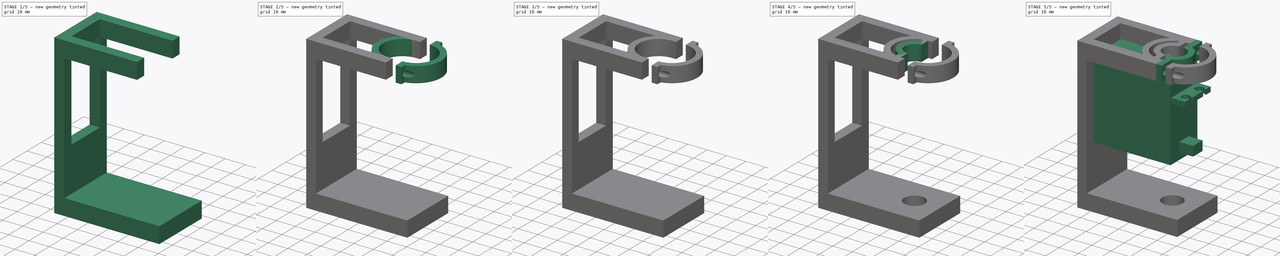
[diagram: build sequence overview — one tinted view per stage of 5, left to right]
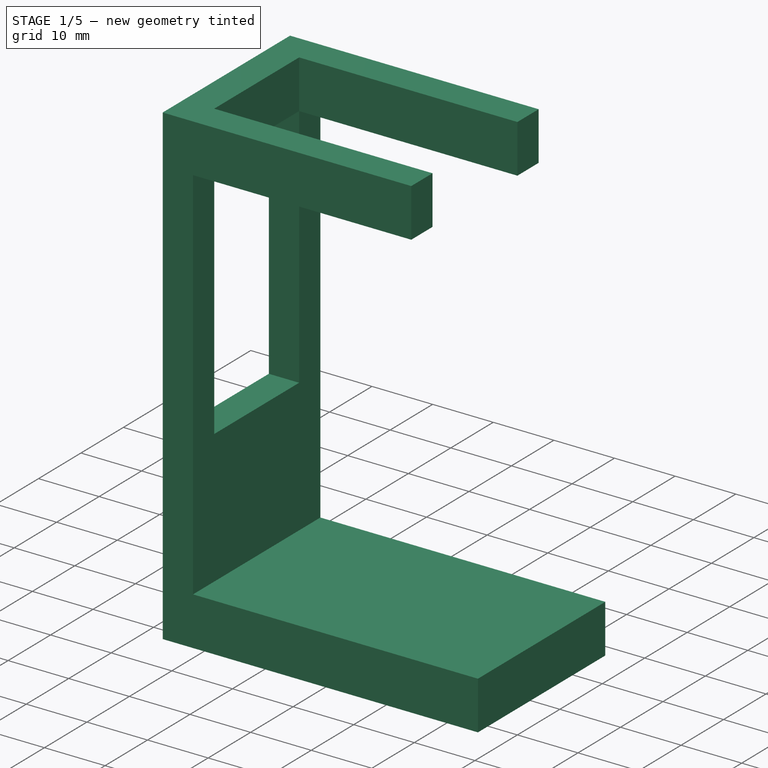
[diagram: stage 1 of 5 — iso view after this stage's code; geometry added in this stage tinted green]
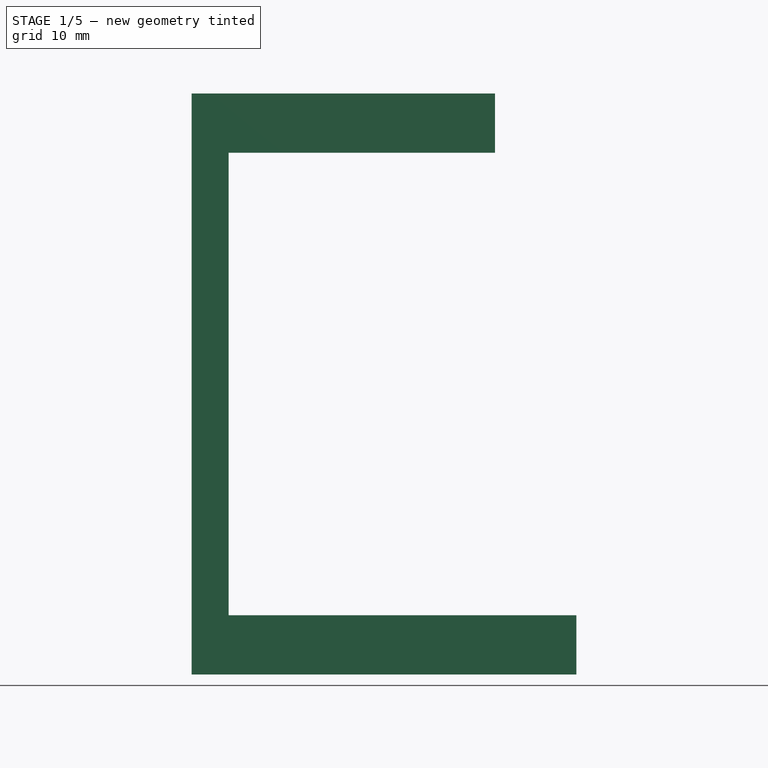
[diagram: stage 1 of 5 — front view after this stage's code; geometry added in this stage tinted green]
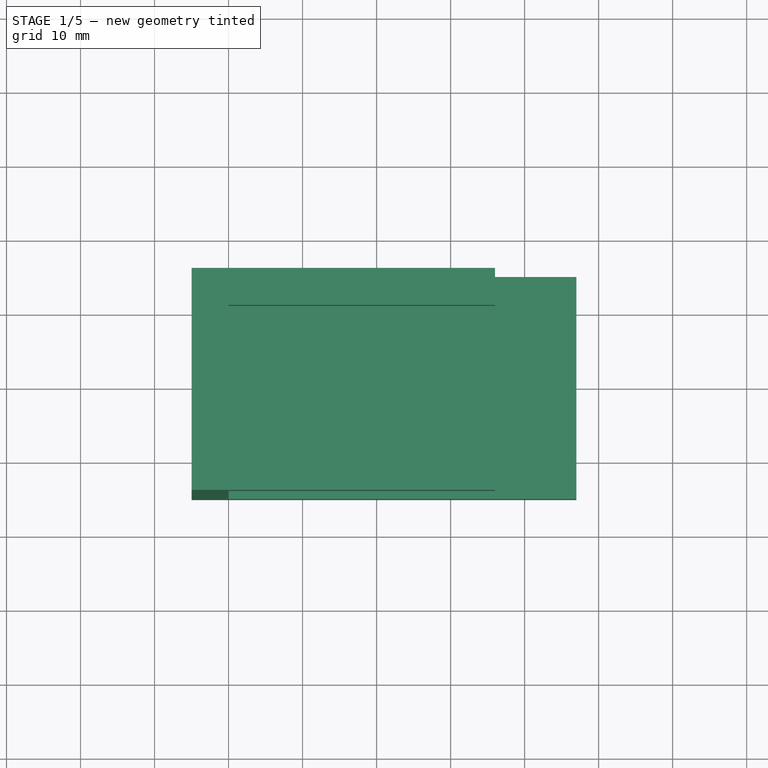
[diagram: stage 1 of 5 — top view after this stage's code; geometry added in this stage tinted green]
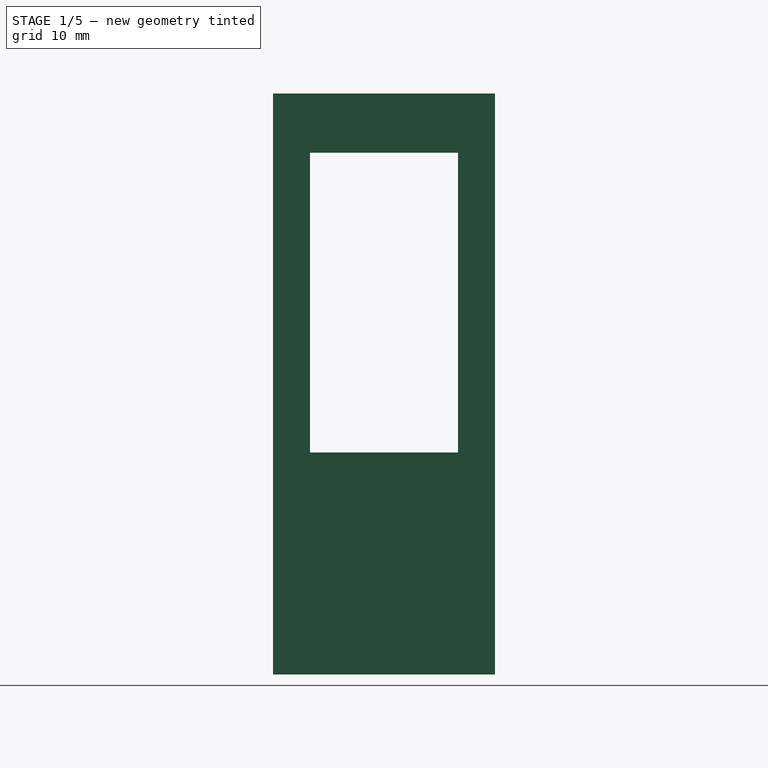
[diagram: stage 1 of 5 — right view after this stage's code; geometry added in this stage tinted green]
FCSTD DOCUMENT  (FreeCAD 0.19R24291 (Git))
Label: MG996R-mounts
License: All rights reserved
LicenseURL: http://en.wikipedia.org/wiki/All_rights_reserved
objects: Sketcher::SketchObject×16, PartDesign::Pad×11, PartDesign::Pocket×6, PartDesign::Body×4, App::Part×3, Spreadsheet::Sheet×2
note: 54 computed .brp shape members not serialized (recipe doc carries the construction recipe); baked Part::Feature solids carry a one-line shape summary decoded from their .brp

FEATURE [PartDesign::Body] Body  label="MG996R-mount-tap"
  Group = -> [Sketch,Pad,Sketch001,Pad004,Sketch002,Pad005,Sketch003,Pad006,Sketch006,Pocket001,Sketch007,Pocket002]
  Origin = -> Origin001
  Tip = -> Pocket002
FEATURE [App::Part] Part  label="3-way-tap"
  Group = -> [Body,Body001,Spreadsheet]
  Origin = -> Origin
FEATURE [Sketcher::SketchObject] Sketch008
  FullyConstrained = true
  MapMode = 5
  Placement = pos=(0,0,0) rot=(0.57735,0.57735,0.57735;2.0944rad)
  Support = -> [YZ_Plane005]
  expr: Constraints[11] = Spreadsheet.lower_bar_width
  expr: Constraints[10] = Spreadsheet001.brace_thickness_y
  expr: Constraints[9] = Spreadsheet001.MG996R_width + 2 * Spreadsheet001.brace_thickness_y
  expr: Constraints[8] = Spreadsheet001.brace_long_side_offset
  sketch-geometry (4):
    g0: LineSegment StartX=25 StartY=-30 StartZ=0 EndX=-5 EndY=-30 EndZ=0
    g1: LineSegment StartX=-5 StartY=-30 StartZ=0 EndX=-5 EndY=-22 EndZ=0
    g2: LineSegment StartX=-5 StartY=-22 StartZ=0 EndX=25 EndY=-22 EndZ=0
    g3: LineSegment StartX=25 StartY=-22 StartZ=0 EndX=25 EndY=-30 EndZ=0
  constraints (12):
    c: Coincident(g0,g1)
    c: Coincident(g1,g2)
    c: Coincident(g2,g3)
    c: Coincident(g3,g0)
    c: Horizontal(g0)
    c: Horizontal(g2)
    c: Vertical(g1)
    c: Vertical(g3)
    c: DistanceY(g0,g-1) = 30
    c: DistanceX(g0,g0) = 30
    c: DistanceX(g1,g-1) = 5
    c: DistanceY(g3,g3) = 8
FEATURE [Spreadsheet::Sheet] Spreadsheet001
  cells = A1=variable; B1=values; A2=brace_thickness_x; B2(brace_thickness_x)=8; A3=brace_thickness_y; B3(brace_thickness_y)=5; A4=brace_depth; B4(brace_depth)=5; A5=MG996R_width; B5(MG996R_width)=20; A6=MG996R_length; B6(MG996R_length)=40.5; A7=brace_long_side_offset; B7(brace_long_side_offset)=30; A8=dist_to_spindle; B8(dist_to_spindle)==38 - brace_depth - MG996R_bracket_depth; A9=spindle_dia; B9(spindle_dia)=20; A10=holding_band_thicc; B10(holding_band_thicc)=3; A11=bottom_spindle_dia; B11(bottom_spindle_dia)=10; A12=lower_bar_width; B12(lower_bar_width)=8; A13=MG996R_bracket_depth; B13(MG996R_bracket_depth)=4
FEATURE [Sketcher::SketchObject] Sketch009
  FullyConstrained = true
  MapMode = 5
  Placement = pos=(0,0,0) rot=(0.57735,0.57735,0.57735;2.0944rad)
  Support = -> [YZ_Plane005]
  expr: Constraints[23] = Spreadsheet001.MG996R_length
  expr: Constraints[22] = Spreadsheet001.MG996R_width
  expr: Constraints[21] = Spreadsheet001.brace_thickness_y
  expr: Constraints[18] = Spreadsheet001.brace_thickness_x
  sketch-geometry (8):
    g0: LineSegment StartX=-5 StartY=48.5 StartZ=0 EndX=0 EndY=48.5 EndZ=0
    g1: LineSegment StartX=0 StartY=48.5 StartZ=0 EndX=0 EndY=40.5 EndZ=0
    g2: LineSegment StartX=0 StartY=40.5 StartZ=0 EndX=-5 EndY=40.5 EndZ=0
    g3: LineSegment StartX=-5 StartY=40.5 StartZ=0 EndX=-5 EndY=48.5 EndZ=0
    g4: LineSegment StartX=20 StartY=48.5 StartZ=0 EndX=25 EndY=48.5 EndZ=0
    g5: LineSegment StartX=25 StartY=48.5 StartZ=0 EndX=25 EndY=40.5 EndZ=0
    g6: LineSegment StartX=25 StartY=40.5 StartZ=0 EndX=20 EndY=40.5 EndZ=0
    g7: LineSegment StartX=20 StartY=40.5 StartZ=0 EndX=20 EndY=48.5 EndZ=0
  constraints (24):
    c: Coincident(g0,g1)
    c: Coincident(g1,g2)
    c: Coincident(g2,g3)
    c: Coincident(g3,g0)
    c: Horizontal(g0)
    c: Horizontal(g2)
    c: Vertical(g1)
    c: Vertical(g3)
    c: Coincident(g4,g5)
    c: Coincident(g5,g6)
    c: Coincident(g6,g7)
    c: Coincident(g7,g4)
    c: Horizontal(g4)
    c: Horizontal(g6)
    c: Vertical(g5)
    c: Vertical(g7)
    c: Horizontal(g4,g0)
    c: Horizontal(g1,g6)
    c: DistanceY(g3,g3) = 8
    c: PointOnObject(g1,g-2)
    c: Equal(g6,g2)
    c: DistanceX(g2,g2) = 5
    c: DistanceX(g1,g6) = 20
    c: DistanceY(g-1,g1) = 40.5
FEATURE [Sketcher::SketchObject] Sketch010
  AttachmentOffset = pos=(0,0,40.5) rot=(0,0,1;0rad)
  FullyConstrained = true
  MapMode = 5
  Placement = pos=(0,0,40.5) rot=(0,0,1;0rad)
  Support = -> [XY_Plane005]
  expr: Constraints[29] = Spreadsheet001.MG996R_width / 2 - Spreadsheet001.spindle_dia / 2 + Spreadsheet001.brace_thickness_y
  expr: Constraints[27] = Spreadsheet001.spindle_dia + 6
  expr: .AttachmentOffset.Base.z = Spreadsheet001.MG996R_length
  expr: Constraints[7] = Spreadsheet001.spindle_dia
  expr: Constraints[5] = Spreadsheet001.dist_to_spindle + Spreadsheet001.bottom_spindle_dia / 2
  expr: Constraints[2] = Spreadsheet001.MG996R_width / 2
  sketch-geometry (10):
    g0: LineSegment StartX=0 StartY=0 StartZ=0 EndX=0 EndY=10 EndZ=0
    g1: LineSegment StartX=0 StartY=10 StartZ=0 EndX=34 EndY=10 EndZ=0
    g2: ArcOfCircle CenterX=34 CenterY=10 CenterZ=0 NormalX=0 NormalY=0 NormalZ=1 AngleXU=0 Radius=10 StartAngle=1.5708 EndAngle=4.71239
    g3: LineSegment StartX=34 StartY=20 StartZ=0 EndX=34 EndY=25 EndZ=0
    g4: LineSegment StartX=34 StartY=0 StartZ=0 EndX=34 EndY=-5 EndZ=0
    g5: LineSegment StartX=34 StartY=-5 StartZ=0 EndX=31 EndY=-5 EndZ=0
    g6: LineSegment StartX=31 StartY=-5 StartZ=0 EndX=31 EndY=-2.64911 EndZ=0
    g7: LineSegment StartX=34 StartY=25 StartZ=0 EndX=31 EndY=25 EndZ=0
    g8: LineSegment StartX=31 StartY=25 StartZ=0 EndX=31 EndY=22.6491 EndZ=0
    g9: ArcOfCircle CenterX=34 CenterY=10 CenterZ=0 NormalX=0 NormalY=0 NormalZ=1 AngleXU=0 Radius=13 StartAngle=1.80366 EndAngle=4.47952
  constraints (30):
    c: Coincident(g0,g-1)
    c: PointOnObject(g0,g-2)
    c: DistanceY(g0,g0) = 10
    c: Coincident(g1,g0)
    c: Horizontal(g1)
    c: DistanceX(g1,g1) = 34
    c: Coincident(g2,g1)
    c: Diameter(g2) = 20
    c: Vertical(g2,g2)
    c: Vertical(g2,g2)
    c: Coincident(g3,g2)
    c: Vertical(g3)
    c: Coincident(g4,g2)
    c: Vertical(g4)
    c: Coincident(g5,g4)
    c: Coincident(g6,g5)
    c: Vertical(g6)
    c: Coincident(g7,g3)
    c: Coincident(g8,g7)
    c: Vertical(g8)
    c: Coincident(g9,g2)
    c: Coincident(g9,g8)
    c: Coincident(g9,g6)
    c: Equal(g5,g7)
    c: Equal(g4,g3)
    c: Horizontal(g7)
    c: Horizontal(g5)
    c: Diameter(g9) = 26
    c: DistanceX(g7,g7) = 3
    c: DistanceY(g3,g3) = 5
FEATURE [Sketcher::SketchObject] Sketch011
  FullyConstrained = true
  MapMode = 5
  Placement = pos=(0,0,0) rot=(0.57735,0.57735,0.57735;2.0944rad)
  Support = -> [YZ_Plane005]
  expr: Constraints[21] = Spreadsheet001.brace_thickness_y
  expr: Constraints[20] = Spreadsheet001.brace_thickness_x
  expr: Constraints[19] = Spreadsheet001.brace_long_side_offset
  expr: Constraints[18] = Spreadsheet001.MG996R_width
  expr: Constraints[22] = Spreadsheet001.brace_thickness_y
  expr: Constraints[17] = Spreadsheet001.MG996R_length
  sketch-geometry (8):
    g0: LineSegment StartX=0 StartY=0 StartZ=0 EndX=20 EndY=0 EndZ=0
    g1: LineSegment StartX=20 StartY=0 StartZ=0 EndX=20 EndY=40.5 EndZ=0
    g2: LineSegment StartX=20 StartY=40.5 StartZ=0 EndX=0 EndY=40.5 EndZ=0
    g3: LineSegment StartX=0 StartY=40.5 StartZ=0 EndX=0 EndY=0 EndZ=0
    g4: LineSegment StartX=-5 StartY=-30 StartZ=0 EndX=25 EndY=-30 EndZ=0
    g5: LineSegment StartX=25 StartY=-30 StartZ=0 EndX=25 EndY=48.5 EndZ=0
    g6: LineSegment StartX=25 StartY=48.5 StartZ=0 EndX=-5 EndY=48.5 EndZ=0
    g7: LineSegment StartX=-5 StartY=48.5 StartZ=0 EndX=-5 EndY=-30 EndZ=0
  constraints (23):
    c: Coincident(g0,g1)
    c: Coincident(g1,g2)
    c: Coincident(g2,g3)
    c: Coincident(g3,g0)
    c: Horizontal(g0)
    c: Horizontal(g2)
    c: Vertical(g1)
    c: Vertical(g3)
    c: Coincident(g0,g-1)
    c: Coincident(g4,g5)
    c: Coincident(g5,g6)
    c: Coincident(g6,g7)
    c: Coincident(g7,g4)
    c: Horizontal(g4)
    c: Horizontal(g6)
    c: Vertical(g5)
    c: Vertical(g7)
    c: DistanceY(g1,g1) = 40.5
    c: DistanceX(g2,g2) = 20
    c: DistanceY(g4,g0) = 30
    c: DistanceY(g1,g5) = 8
    c: DistanceX(g1,g5) = 5
    c: DistanceX(g6,g2) = 5
FEATURE [PartDesign::Pad] Pad009
  Direction = (1,1,1)
  Length = 5
  Length2 = 100
  Placement = pos=(0,0,0) rot=(0.57735,0.57735,0.57735;2.0944rad)
  Profile = -> Sketch011
  Reversed = true
  Type = 0
  expr: Length = Spreadsheet001.brace_depth
FEATURE [PartDesign::Pad] Pad008
  BaseFeature = -> Pad009
  Direction = (1,1,1)
  Length = 47
  Length2 = 100
  Placement = pos=(0,0,0) rot=(0.57735,0.57735,0.57735;2.0944rad)
  Profile = -> Sketch008
  Type = 0
  expr: Length = Spreadsheet001.dist_to_spindle + Spreadsheet001.bottom_spindle_dia + Spreadsheet001.brace_thickness_x
FEATURE [PartDesign::Body] Body003  label="MG996R-band-sep"
  Group = -> [Sketch014,Pad011,Sketch013,Pocket005]
  Origin = -> Origin005
  Tip = -> Pocket005
FEATURE [Sketcher::SketchObject] Sketch015
  FullyConstrained = true
  MapMode = 5
  Support = -> [XY_Plane005]
  expr: Constraints[2] = Spreadsheet001.MG996R_width / 2
  expr: Constraints[1] = Spreadsheet001.bottom_spindle_dia + 0.5
  expr: Constraints[0] = Spreadsheet001.dist_to_spindle + Spreadsheet001.bottom_spindle_dia / 2
  sketch-geometry (1):
    g0: Circle CenterX=34 CenterY=10 CenterZ=0 NormalX=0 NormalY=0 NormalZ=1 AngleXU=0 Radius=5.25
  constraints (3):
    c: DistanceX(g-1,g0) = 34
    c: Diameter(g0) = 10.5
    c: DistanceY(g-1,g0) = 10
FEATURE [PartDesign::Pad] Pad012
  BaseFeature = -> Pad008
  Direction = (1,1,1)
  Length = 36
  Length2 = 100
  Placement = pos=(0,0,0) rot=(0.57735,0.57735,0.57735;2.0944rad)
  Profile = -> Sketch009
  Type = 0
  expr: Length = Spreadsheet001.dist_to_spindle + Spreadsheet001.spindle_dia / 2 - Spreadsheet001.holding_band_thicc
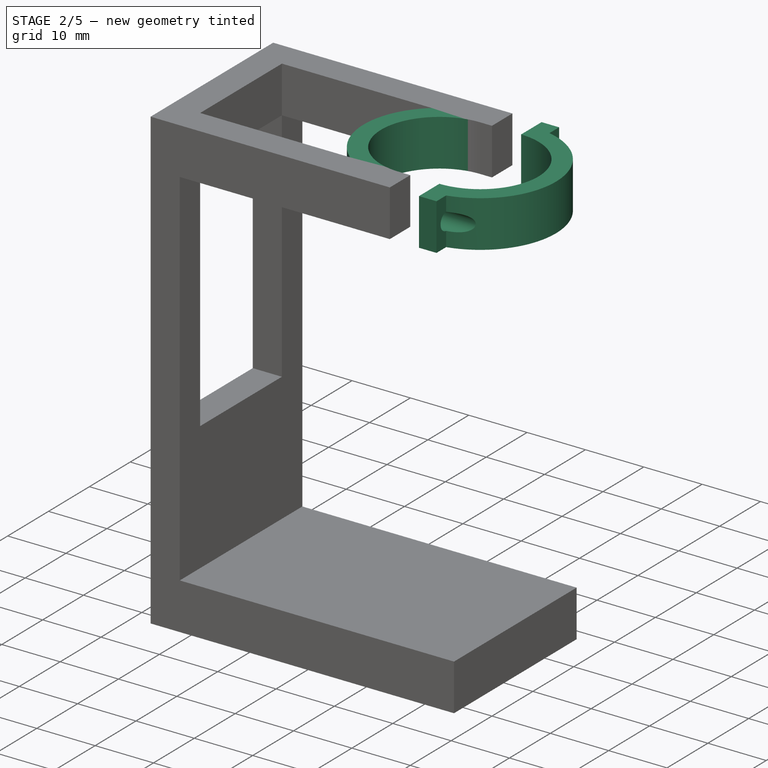
[diagram: stage 2 of 5 — iso view after this stage's code; geometry added in this stage tinted green]
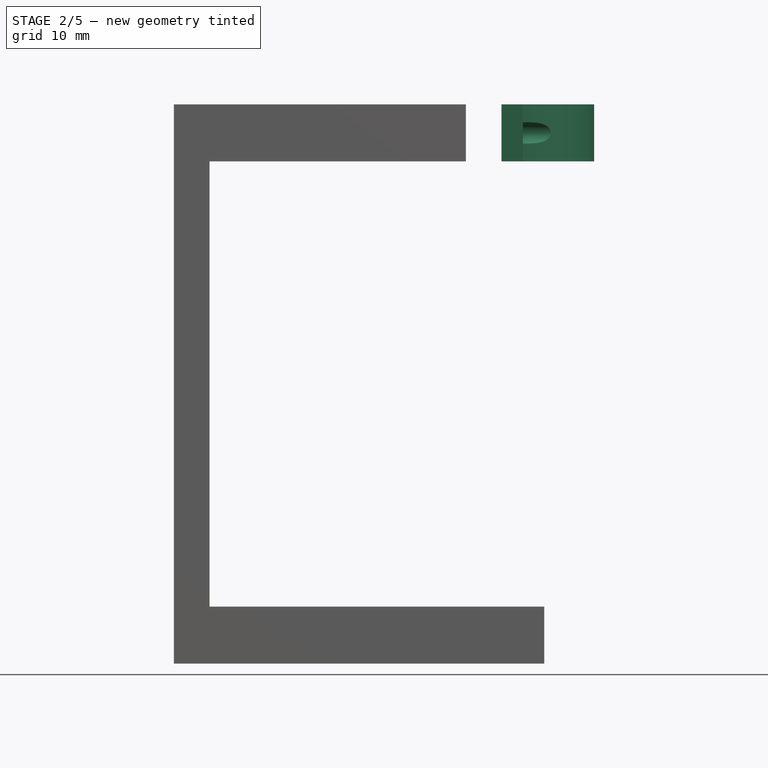
[diagram: stage 2 of 5 — front view after this stage's code; geometry added in this stage tinted green]
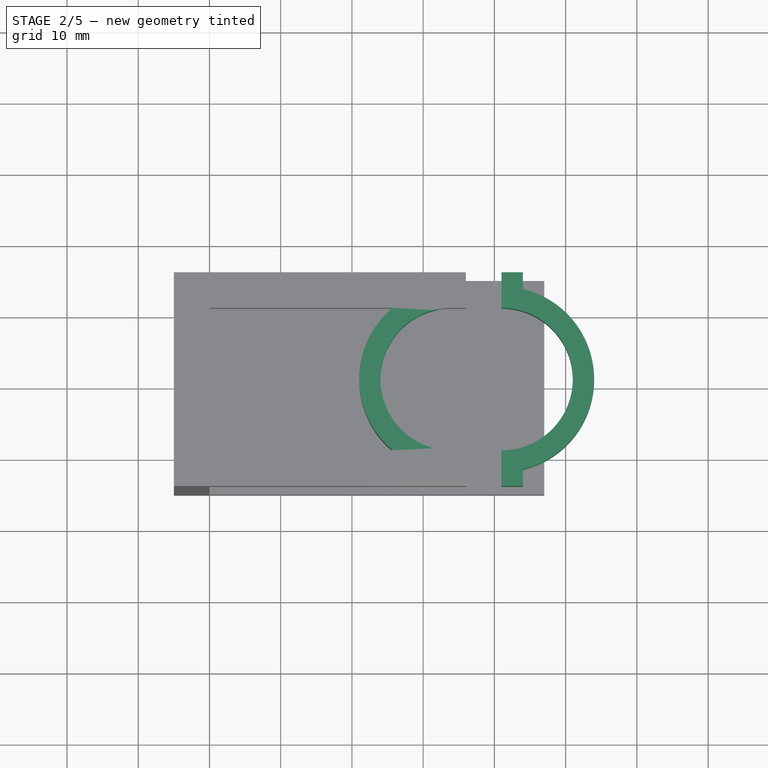
[diagram: stage 2 of 5 — top view after this stage's code; geometry added in this stage tinted green]
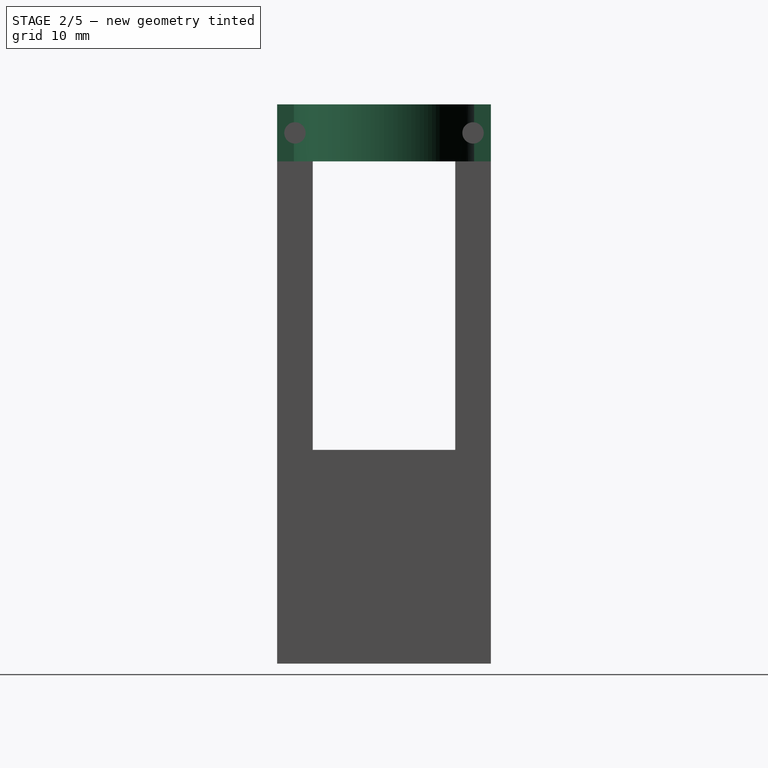
[diagram: stage 2 of 5 — right view after this stage's code; geometry added in this stage tinted green]
FEATURE [Sketcher::SketchObject] Sketch012
  AttachmentOffset = pos=(0,0,40.5) rot=(0,0,1;0rad)
  FullyConstrained = true
  MapMode = 5
  Placement = pos=(40.5,-9e-15,9e-15) rot=(0.57735,0.57735,0.57735;2.0944rad)
  Support = -> [YZ_Plane005]
  expr: .AttachmentOffset.Base.z = Spreadsheet001.MG996R_length
  expr: Constraints[4] = Spreadsheet001.MG996R_length + Spreadsheet001.brace_thickness_x / 2
  expr: Constraints[3] = Spreadsheet001.brace_thickness_y / 2
  expr: Constraints[2] = Spreadsheet001.MG996R_width + Spreadsheet001.brace_thickness_y
  sketch-geometry (2):
    g0: Circle CenterX=-2.5 CenterY=44.5 CenterZ=0 NormalX=0 NormalY=0 NormalZ=1 AngleXU=0 Radius=1.5
    g1: Circle CenterX=22.5 CenterY=44.5 CenterZ=0 NormalX=0 NormalY=0 NormalZ=1 AngleXU=0 Radius=1.5
  constraints (6):
    c: Equal(g1,g0)
    c: Horizontal(g1,g0)
    c: DistanceX(g0,g1) = 25
    c: DistanceX(g0,g-1) = 2.5
    c: DistanceY(g-1,g0) = 44.5
    c: Diameter(g1) = 3
FEATURE [Sketcher::SketchObject] Sketch013
  AttachmentOffset = pos=(0,0,26) rot=(0,0,1;0rad)
  FullyConstrained = true
  MapMode = 5
  Placement = pos=(26,-5.8e-15,5.8e-15) rot=(0.57735,0.57735,0.57735;2.0944rad)
  Support = -> [YZ_Plane006]
  expr: .AttachmentOffset.Base.z = Spreadsheet001.dist_to_spindle - Spreadsheet001.holding_band_thicc
  expr: Constraints[5] = Spreadsheet001.brace_thickness_y / 2
  expr: Constraints[2] = Spreadsheet001.MG996R_width + Spreadsheet001.brace_thickness_y
  expr: Constraints[1] = Spreadsheet001.MG996R_length + Spreadsheet001.brace_thickness_x / 2
  sketch-geometry (2):
    g0: Circle CenterX=22.5 CenterY=44.5 CenterZ=0 NormalX=0 NormalY=0 NormalZ=1 AngleXU=0 Radius=1.5
    g1: Circle CenterX=-2.5 CenterY=44.5 CenterZ=0 NormalX=0 NormalY=0 NormalZ=1 AngleXU=0 Radius=1.5
  constraints (6):
    c: Horizontal(g1,g0)
    c: DistanceY(g-1,g1) = 44.5
    c: DistanceX(g1,g0) = 25
    c: Diameter(g0) = 3
    c: Equal(g1,g0)
    c: DistanceX(g1,g-1) = 2.5
FEATURE [Sketcher::SketchObject] Sketch014
  AttachmentOffset = pos=(0,0,40.5) rot=(0,0,1;0rad)
  FullyConstrained = true
  MapMode = 5
  Placement = pos=(0,0,40.5) rot=(0,0,1;0rad)
  Support = -> [XY_Plane006]
  expr: .AttachmentOffset.Base.z = Spreadsheet001.MG996R_length
  expr: Constraints[28] = Spreadsheet001.spindle_dia + 6
  expr: Constraints[5] = Spreadsheet001.dist_to_spindle + Spreadsheet001.spindle_dia / 2 + 2
  expr: Constraints[29] = Spreadsheet001.MG996R_width / 2 + Spreadsheet001.brace_thickness_y - Spreadsheet001.spindle_dia / 2
  expr: Constraints[26] = Spreadsheet001.spindle_dia
  expr: Constraints[4] = Spreadsheet001.MG996R_width / 2
  sketch-geometry (10):
    g0: LineSegment StartX=0 StartY=0 StartZ=0 EndX=0 EndY=10 EndZ=0
    g1: LineSegment StartX=0 StartY=10 StartZ=0 EndX=41 EndY=10 EndZ=0
    g2: ArcOfCircle CenterX=41 CenterY=10 CenterZ=0 NormalX=0 NormalY=0 NormalZ=1 AngleXU=0 Radius=10 StartAngle=4.71239 EndAngle=7.85398
    g3: LineSegment StartX=41 StartY=20 StartZ=0 EndX=41 EndY=25 EndZ=0
    g4: LineSegment StartX=41 StartY=25 StartZ=0 EndX=44 EndY=25 EndZ=0
    g5: LineSegment StartX=44 StartY=25 StartZ=0 EndX=44 EndY=22.6491 EndZ=0
    g6: LineSegment StartX=41 StartY=0 StartZ=0 EndX=41 EndY=-5 EndZ=0
    g7: LineSegment StartX=41 StartY=-5 StartZ=0 EndX=44 EndY=-5 EndZ=0
    g8: LineSegment StartX=44 StartY=-5 StartZ=0 EndX=44 EndY=-2.64911 EndZ=0
    g9: ArcOfCircle CenterX=41 CenterY=10 CenterZ=0 NormalX=0 NormalY=0 NormalZ=1 AngleXU=0 Radius=13 StartAngle=4.94526 EndAngle=7.62111
  constraints (30):
    c: Coincident(g0,g-1)
    c: PointOnObject(g0,g-2)
    c: Coincident(g1,g0)
    c: Horizontal(g1)
    c: DistanceY(g0,g0) = 10
    c: DistanceX(g1,g1) = 41
    c: Coincident(g2,g1)
    c: Coincident(g3,g2)
    c: Vertical(g3)
    c: Coincident(g4,g3)
    c: Horizontal(g4)
    c: Coincident(g5,g4)
    c: Vertical(g5)
    c: Coincident(g6,g2)
    c: Vertical(g6)
    c: Coincident(g7,g6)
    c: Coincident(g8,g7)
    c: Vertical(g8)
    c: Coincident(g9,g2)
    c: Coincident(g9,g5)
    c: Coincident(g9,g8)
    c: Equal(g3,g6)
    c: Equal(g5,g8)
    c: Equal(g7,g4)
    c: Vertical(g2,g2)
    c: Vertical(g2,g2)
    c: Diameter(g2) = 20
    c: DistanceX(g7,g7) = 3
    c: Diameter(g9) = 26
    c: DistanceY(g3,g3) = 5
FEATURE [PartDesign::Pad] Pad011
  Direction = (1,1,1)
  Length = 8
  Length2 = 100
  Profile = -> Sketch014
  Type = 0
  expr: Length = Spreadsheet001.brace_thickness_x
FEATURE [PartDesign::Pocket] Pocket005
  BaseFeature = -> Pad011
  Length = 5
  Length2 = 100
  Profile = -> Sketch013
  Reversed = true
  Type = 1
FEATURE [PartDesign::Pad] Pad010
  BaseFeature = -> Pad012
  Direction = (1,1,1)
  Length = 8
  Length2 = 100
  Placement = pos=(0,0,0) rot=(0.57735,0.57735,0.57735;2.0944rad)
  Profile = -> Sketch010
  Type = 0
  expr: Length = Spreadsheet001.brace_thickness_x
FEATURE [PartDesign::Pocket] Pocket004
  BaseFeature = -> Pad010
  Length = 5
  Length2 = 100
  Placement = pos=(0,0,0) rot=(0.57735,0.57735,0.57735;2.0944rad)
  Profile = -> Sketch012
  Reversed = true
  Type = 1
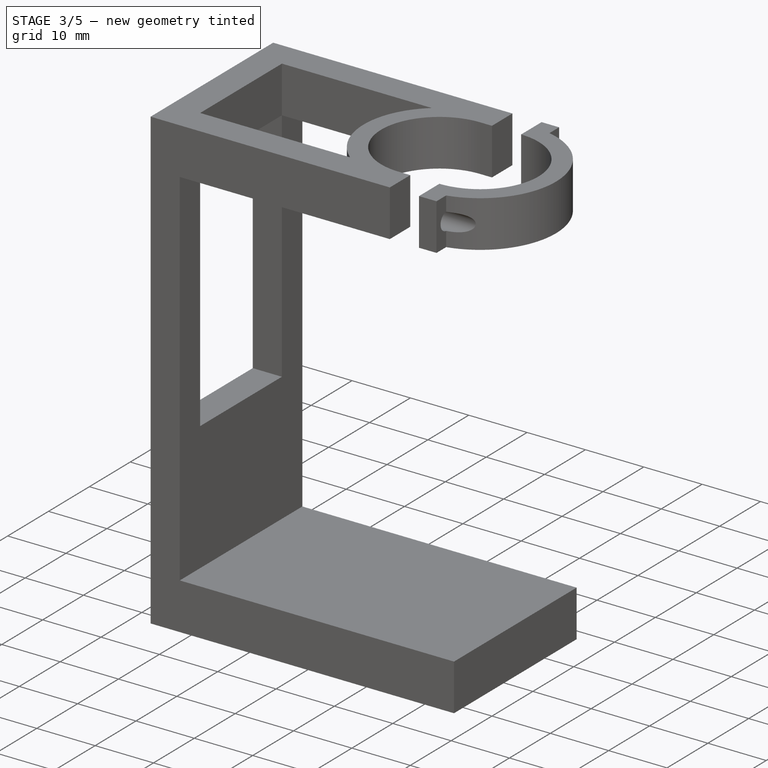
[diagram: stage 3 of 5 — iso view after this stage's code; geometry added in this stage tinted green]
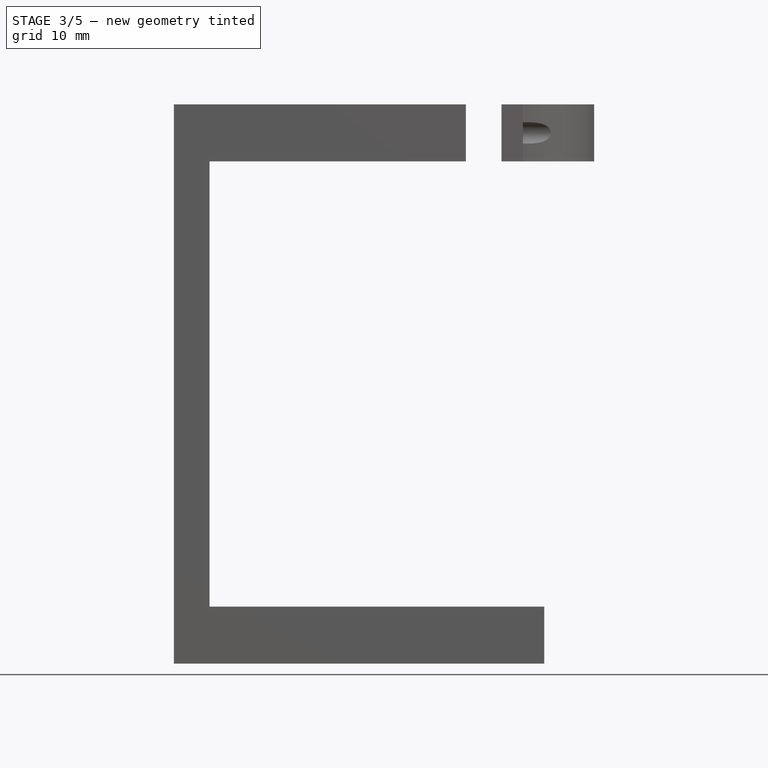
[diagram: stage 3 of 5 — front view after this stage's code; geometry added in this stage tinted green]
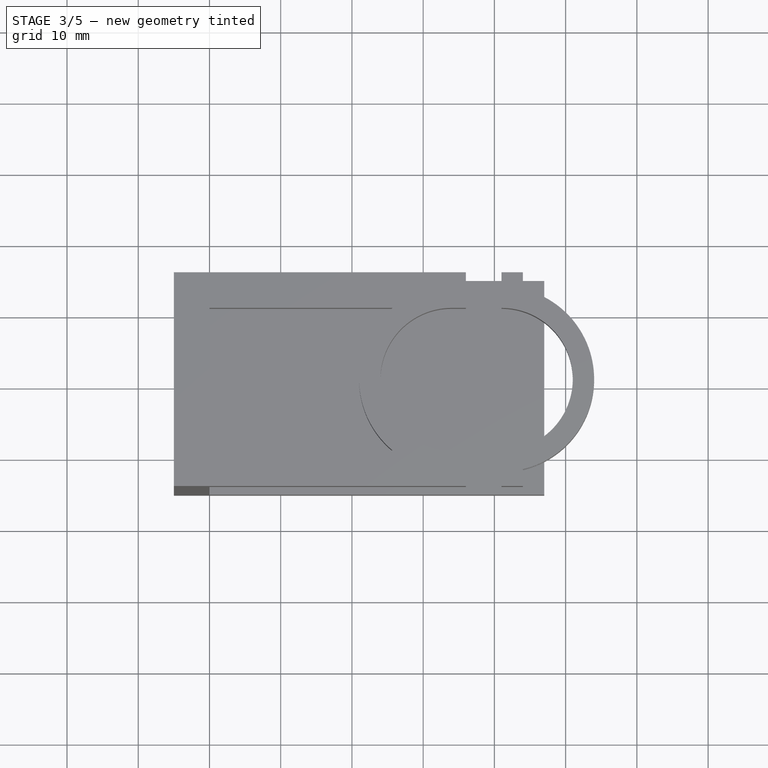
[diagram: stage 3 of 5 — top view after this stage's code; geometry added in this stage tinted green]
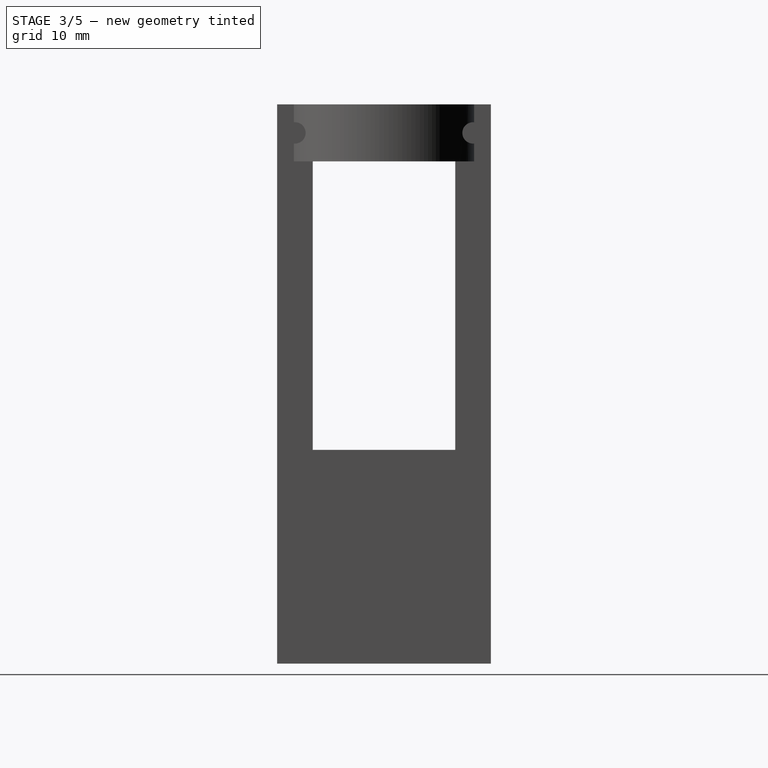
[diagram: stage 3 of 5 — right view after this stage's code; geometry added in this stage tinted green]
FEATURE [App::Part] Part001  label="MG996R"
  Group = -> [Pad003]
  Origin = -> Origin002
  Placement = pos=(-37,0,40) rot=(0,1,0;1.5708rad)
FEATURE [Sketcher::SketchObject] Sketch
  FullyConstrained = true
  MapMode = 5
  Placement = pos=(0,0,0) rot=(0.57735,0.57735,0.57735;2.0944rad)
  Support = -> [YZ_Plane001]
  expr: Constraints[17] = Spreadsheet.MG996R_length
  expr: Constraints[22] = Spreadsheet.brace_thickness_y
  expr: Constraints[18] = Spreadsheet.MG996R_width
  expr: Constraints[19] = Spreadsheet.brace_long_side_offset
  expr: Constraints[20] = Spreadsheet.brace_thickness_x
  expr: Constraints[21] = Spreadsheet.brace_thickness_y
  sketch-geometry (8):
    g0: LineSegment StartX=0 StartY=0 StartZ=0 EndX=20 EndY=0 EndZ=0
    g1: LineSegment StartX=20 StartY=0 StartZ=0 EndX=20 EndY=40.5 EndZ=0
    g2: LineSegment StartX=20 StartY=40.5 StartZ=0 EndX=0 EndY=40.5 EndZ=0
    g3: LineSegment StartX=0 StartY=40.5 StartZ=0 EndX=0 EndY=0 EndZ=0
    g4: LineSegment StartX=-5 StartY=-30 StartZ=0 EndX=25 EndY=-30 EndZ=0
    g5: LineSegment StartX=25 StartY=-30 StartZ=0 EndX=25 EndY=48.5 EndZ=0
    g6: LineSegment StartX=25 StartY=48.5 StartZ=0 EndX=-5 EndY=48.5 EndZ=0
    g7: LineSegment StartX=-5 StartY=48.5 StartZ=0 EndX=-5 EndY=-30 EndZ=0
  constraints (23):
    c: Coincident(g0,g1)
    c: Coincident(g1,g2)
    c: Coincident(g2,g3)
    c: Coincident(g3,g0)
    c: Horizontal(g0)
    c: Horizontal(g2)
    c: Vertical(g1)
    c: Vertical(g3)
    c: Coincident(g0,g-1)
    c: Coincident(g4,g5)
    c: Coincident(g5,g6)
    c: Coincident(g6,g7)
    c: Coincident(g7,g4)
    c: Horizontal(g4)
    c: Horizontal(g6)
    c: Vertical(g5)
    c: Vertical(g7)
    c: DistanceY(g1,g1) = 40.5
    c: DistanceX(g2,g2) = 20
    c: DistanceY(g4,g0) = 30
    c: DistanceY(g1,g5) = 8
    c: DistanceX(g1,g5) = 5
    c: DistanceX(g6,g2) = 5
FEATURE [Spreadsheet::Sheet] Spreadsheet
  cells = A1=variable; B1=values; A2=brace_thickness_x; B2(brace_thickness_x)=8; A3=brace_thickness_y; B3(brace_thickness_y)=5; A4=brace_depth; B4(brace_depth)=5; A5=MG996R_width; B5(MG996R_width)=20; A6=MG996R_length; B6(MG996R_length)=40.5; A7=brace_long_side_offset; B7(brace_long_side_offset)=30; A8=dist_to_spindle; B8(dist_to_spindle)==38 - brace_depth - MG996R_bracket_depth; A9=spindle_dia; B9(spindle_dia)=10; A10=holding_band_thicc; B10(holding_band_thicc)=3; A11=bottom_spindle_dia; B11(bottom_spindle_dia)=11.5; A12=lower_bar_width; B12(lower_bar_width)=8; A13=MG996R_bracket_depth; B13(MG996R_bracket_depth)=4
FEATURE [PartDesign::Pad] Pad
  Direction = (1,1,1)
  Length = 5
  Length2 = 100
  Placement = pos=(0,0,0) rot=(0.57735,0.57735,0.57735;2.0944rad)
  Profile = -> Sketch
  Reversed = true
  Type = 0
  expr: Length = Spreadsheet.brace_depth
FEATURE [Sketcher::SketchObject] Sketch001
  FullyConstrained = true
  MapMode = 5
  Placement = pos=(0,0,0) rot=(0.57735,0.57735,0.57735;2.0944rad)
  Support = -> [YZ_Plane001]
  expr: Constraints[11] = Spreadsheet.lower_bar_width
  expr: Constraints[8] = Spreadsheet.brace_long_side_offset
  expr: Constraints[9] = Spreadsheet.MG996R_width + 2 * Spreadsheet.brace_thickness_y
  expr: Constraints[10] = Spreadsheet.brace_thickness_y
  sketch-geometry (4):
    g0: LineSegment StartX=25 StartY=-30 StartZ=0 EndX=-5 EndY=-30 EndZ=0
    g1: LineSegment StartX=-5 StartY=-30 StartZ=0 EndX=-5 EndY=-22 EndZ=0
    g2: LineSegment StartX=-5 StartY=-22 StartZ=0 EndX=25 EndY=-22 EndZ=0
    g3: LineSegment StartX=25 StartY=-22 StartZ=0 EndX=25 EndY=-30 EndZ=0
  constraints (12):
    c: Coincident(g0,g1)
    c: Coincident(g1,g2)
    c: Coincident(g2,g3)
    c: Coincident(g3,g0)
    c: Horizontal(g0)
    c: Horizontal(g2)
    c: Vertical(g1)
    c: Vertical(g3)
    c: DistanceY(g0,g-1) = 30
    c: DistanceX(g0,g0) = 30
    c: DistanceX(g1,g-1) = 5
    c: DistanceY(g3,g3) = 8
FEATURE [PartDesign::Pad] Pad004
  BaseFeature = -> Pad
  Direction = (1,1,1)
  Length = 47
  Length2 = 100
  Placement = pos=(0,0,0) rot=(0.57735,0.57735,0.57735;2.0944rad)
  Profile = -> Sketch001
  Type = 0
  expr: Length = Spreadsheet.dist_to_spindle + Spreadsheet.spindle_dia + Spreadsheet.brace_thickness_x
FEATURE [PartDesign::Pocket] Pocket003
  BaseFeature = -> Pocket004
  Length = 5
  Length2 = 100
  Placement = pos=(0,0,0) rot=(0.57735,0.57735,0.57735;2.0944rad)
  Profile = -> Sketch015
  Type = 1
FEATURE [PartDesign::Body] Body002  label="MG996R-mount-sep"
  Group = -> [Sketch011,Pad009,Sketch008,Pad008,Sketch009,Pad012,Sketch010,Pad010,Sketch012,Pocket004,Sketch015,Pocket003]
  Origin = -> Origin006
  Tip = -> Pocket003
FEATURE [App::Part] Part002  label="sep-funnel"
  Group = -> [Spreadsheet001,Body002,Body003]
  Origin = -> Origin004
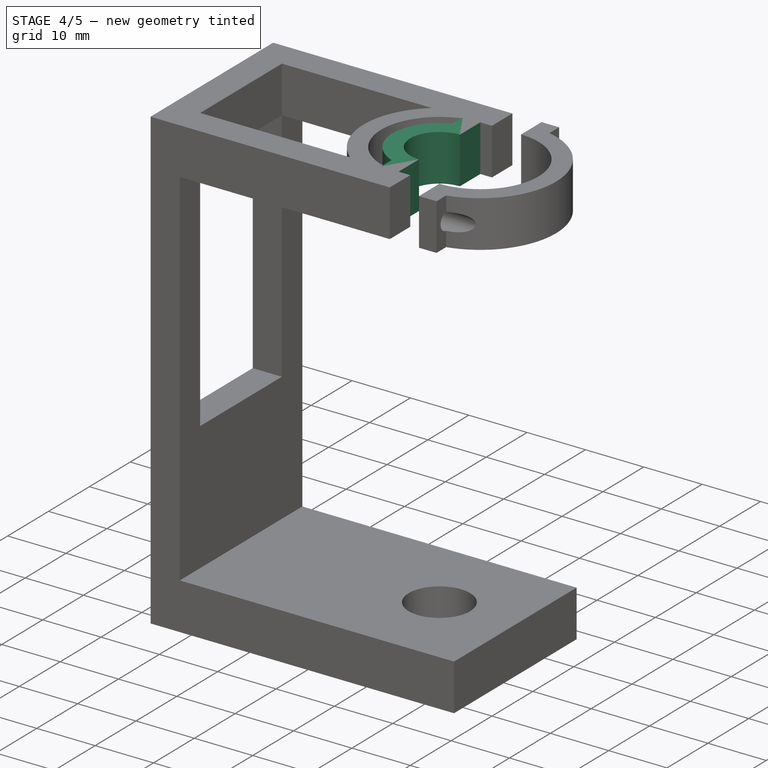
[diagram: stage 4 of 5 — iso view after this stage's code; geometry added in this stage tinted green]
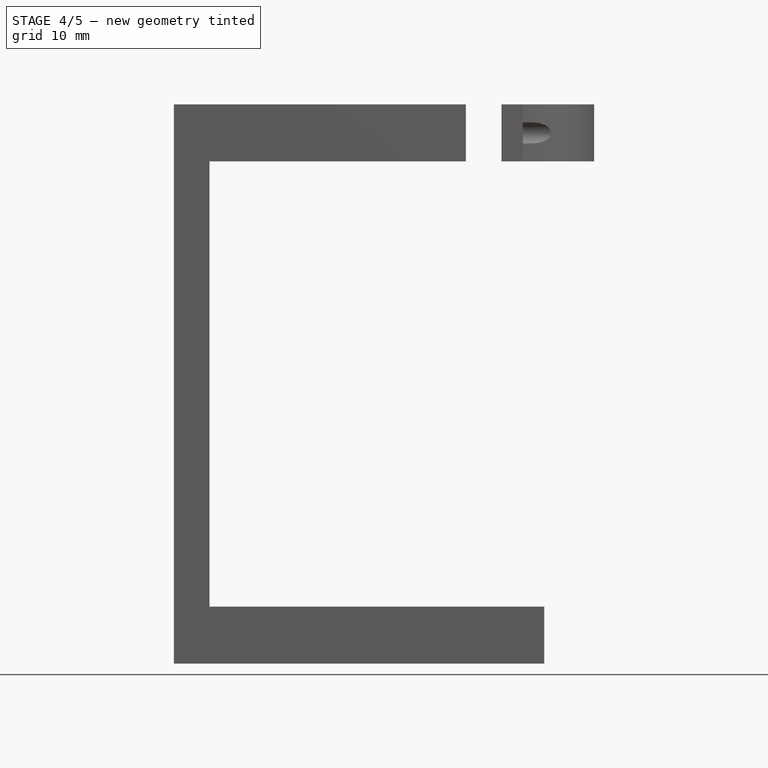
[diagram: stage 4 of 5 — front view after this stage's code; geometry added in this stage tinted green]
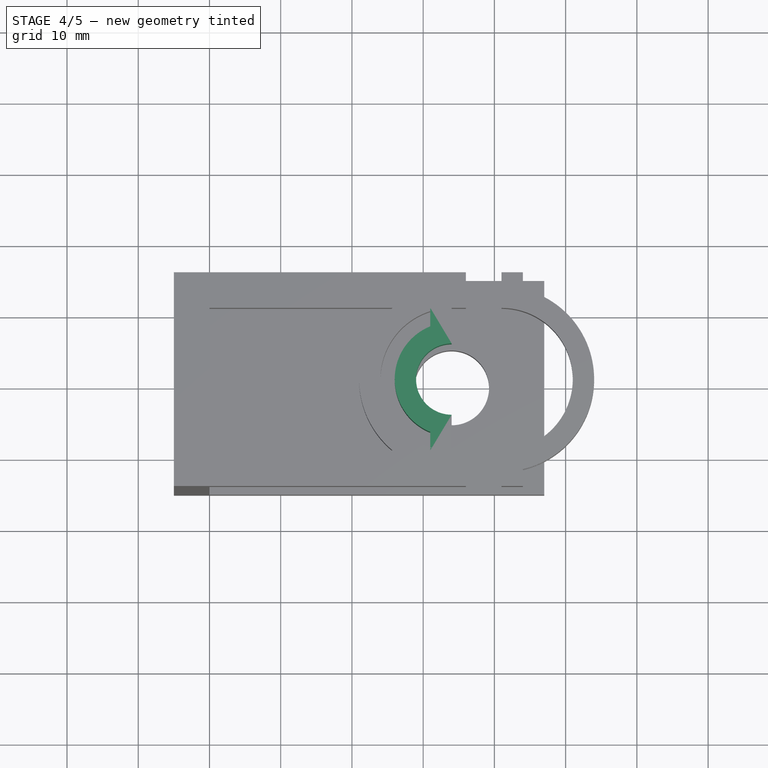
[diagram: stage 4 of 5 — top view after this stage's code; geometry added in this stage tinted green]
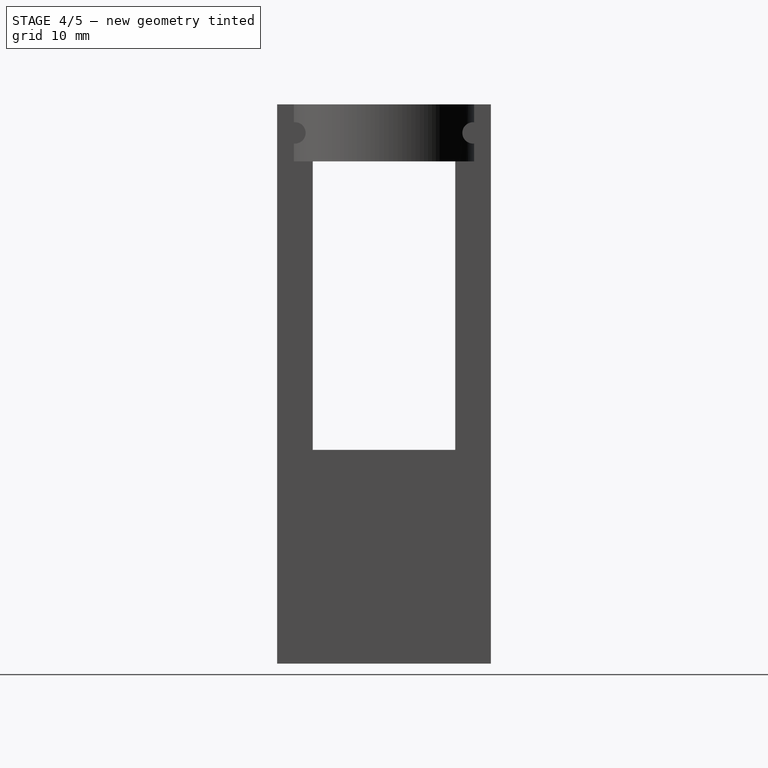
[diagram: stage 4 of 5 — right view after this stage's code; geometry added in this stage tinted green]
FEATURE [Sketcher::SketchObject] Sketch002
  FullyConstrained = true
  MapMode = 5
  Placement = pos=(0,0,0) rot=(0.57735,0.57735,0.57735;2.0944rad)
  Support = -> [YZ_Plane001]
  expr: Constraints[18] = Spreadsheet.brace_thickness_x
  expr: Constraints[21] = Spreadsheet.brace_thickness_y
  expr: Constraints[22] = Spreadsheet.MG996R_width
  expr: Constraints[23] = Spreadsheet.MG996R_length
  sketch-geometry (8):
    g0: LineSegment StartX=-5 StartY=48.5 StartZ=0 EndX=0 EndY=48.5 EndZ=0
    g1: LineSegment StartX=0 StartY=48.5 StartZ=0 EndX=0 EndY=40.5 EndZ=0
    g2: LineSegment StartX=0 StartY=40.5 StartZ=0 EndX=-5 EndY=40.5 EndZ=0
    g3: LineSegment StartX=-5 StartY=40.5 StartZ=0 EndX=-5 EndY=48.5 EndZ=0
    g4: LineSegment StartX=20 StartY=48.5 StartZ=0 EndX=25 EndY=48.5 EndZ=0
    g5: LineSegment StartX=25 StartY=48.5 StartZ=0 EndX=25 EndY=40.5 EndZ=0
    g6: LineSegment StartX=25 StartY=40.5 StartZ=0 EndX=20 EndY=40.5 EndZ=0
    g7: LineSegment StartX=20 StartY=40.5 StartZ=0 EndX=20 EndY=48.5 EndZ=0
  constraints (24):
    c: Coincident(g0,g1)
    c: Coincident(g1,g2)
    c: Coincident(g2,g3)
    c: Coincident(g3,g0)
    c: Horizontal(g0)
    c: Horizontal(g2)
    c: Vertical(g1)
    c: Vertical(g3)
    c: Coincident(g4,g5)
    c: Coincident(g5,g6)
    c: Coincident(g6,g7)
    c: Coincident(g7,g4)
    c: Horizontal(g4)
    c: Horizontal(g6)
    c: Vertical(g5)
    c: Vertical(g7)
    c: Horizontal(g4,g0)
    c: Horizontal(g1,g6)
    c: DistanceY(g3,g3) = 8
    c: PointOnObject(g1,g-2)
    c: Equal(g6,g2)
    c: DistanceX(g2,g2) = 5
    c: DistanceX(g1,g6) = 20
    c: DistanceY(g-1,g1) = 40.5
FEATURE [PartDesign::Pad] Pad005
  BaseFeature = -> Pad004
  Direction = (1,1,1)
  Length = 31
  Length2 = 100
  Placement = pos=(0,0,0) rot=(0.57735,0.57735,0.57735;2.0944rad)
  Profile = -> Sketch002
  Type = 0
  expr: Length = Spreadsheet.dist_to_spindle + Spreadsheet.spindle_dia / 2 - Spreadsheet.holding_band_thicc
FEATURE [Sketcher::SketchObject] Sketch003
  AttachmentOffset = pos=(0,0,40.5) rot=(0,0,1;0rad)
  FullyConstrained = true
  MapMode = 5
  Placement = pos=(0,0,40.5) rot=(0,0,1;0rad)
  Support = -> [XY_Plane001]
  expr: Constraints[2] = Spreadsheet.MG996R_width / 2
  expr: Constraints[5] = Spreadsheet.dist_to_spindle + Spreadsheet.spindle_dia / 2
  expr: Constraints[7] = Spreadsheet.spindle_dia
  expr: .AttachmentOffset.Base.z = Spreadsheet.MG996R_length
  expr: Constraints[27] = Spreadsheet.spindle_dia + 6
  expr: Constraints[29] = Spreadsheet.MG996R_width / 2 - Spreadsheet.spindle_dia / 2 + Spreadsheet.brace_thickness_y
  sketch-geometry (10):
    g0: LineSegment StartX=0 StartY=0 StartZ=0 EndX=0 EndY=10 EndZ=0
    g1: LineSegment StartX=0 StartY=10 StartZ=0 EndX=34 EndY=10 EndZ=0
    g2: ArcOfCircle CenterX=34 CenterY=10 CenterZ=0 NormalX=0 NormalY=0 NormalZ=1 AngleXU=0 Radius=5 StartAngle=1.5708 EndAngle=4.71239
    g3: LineSegment StartX=34 StartY=15 StartZ=0 EndX=34 EndY=25 EndZ=0
    g4: LineSegment StartX=34 StartY=5 StartZ=0 EndX=34 EndY=-5 EndZ=0
    g5: LineSegment StartX=34 StartY=-5 StartZ=0 EndX=31 EndY=-5 EndZ=0
    g6: LineSegment StartX=31 StartY=-5 StartZ=0 EndX=31 EndY=2.5838 EndZ=0
    g7: LineSegment StartX=34 StartY=25 StartZ=0 EndX=31 EndY=25 EndZ=0
    g8: LineSegment StartX=31 StartY=25 StartZ=0 EndX=31 EndY=17.4162 EndZ=0
    g9: ArcOfCircle CenterX=34 CenterY=10 CenterZ=0 NormalX=0 NormalY=0 NormalZ=1 AngleXU=0 Radius=8 StartAngle=1.95519 EndAngle=4.32799
  constraints (30):
    c: Coincident(g0,g-1)
    c: PointOnObject(g0,g-2)
    c: DistanceY(g0,g0) = 10
    c: Coincident(g1,g0)
    c: Horizontal(g1)
    c: DistanceX(g1,g1) = 34
    c: Coincident(g2,g1)
    c: Diameter(g2) = 10
    c: Vertical(g2,g2)
    c: Vertical(g2,g2)
    c: Coincident(g3,g2)
    c: Vertical(g3)
    c: Coincident(g4,g2)
    c: Vertical(g4)
    c: Coincident(g5,g4)
    c: Coincident(g6,g5)
    c: Vertical(g6)
    c: Coincident(g7,g3)
    c: Coincident(g8,g7)
    c: Vertical(g8)
    c: Coincident(g9,g2)
    c: Coincident(g9,g8)
    c: Coincident(g9,g6)
    c: Equal(g5,g7)
    c: Equal(g4,g3)
    c: Horizontal(g7)
    c: Horizontal(g5)
    c: Diameter(g9) = 16
    c: DistanceX(g7,g7) = 3
    c: DistanceY(g3,g3) = 10
FEATURE [PartDesign::Pad] Pad006
  BaseFeature = -> Pad005
  Direction = (1,1,1)
  Length = 8
  Length2 = 100
  Placement = pos=(0,0,0) rot=(0.57735,0.57735,0.57735;2.0944rad)
  Profile = -> Sketch003
  Type = 0
  expr: Length = Spreadsheet.brace_thickness_x
FEATURE [PartDesign::Body] Body001  label="MG996R-band-tap"
  Group = -> [Sketch004,Pad007,Sketch005,Pocket]
  Origin = -> Origin003
  Tip = -> Pocket
FEATURE [Sketcher::SketchObject] Sketch006
  AttachmentOffset = pos=(0,0,40.5) rot=(0,0,1;0rad)
  FullyConstrained = true
  MapMode = 5
  Placement = pos=(40.5,-9e-15,9e-15) rot=(0.57735,0.57735,0.57735;2.0944rad)
  Support = -> [YZ_Plane001]
  expr: Constraints[2] = Spreadsheet.MG996R_width + Spreadsheet.brace_thickness_y
  expr: Constraints[3] = Spreadsheet.brace_thickness_y / 2
  expr: Constraints[4] = Spreadsheet.MG996R_length + Spreadsheet.brace_thickness_x / 2
  expr: .AttachmentOffset.Base.z = Spreadsheet.MG996R_length
  sketch-geometry (2):
    g0: Circle CenterX=-2.5 CenterY=44.5 CenterZ=0 NormalX=0 NormalY=0 NormalZ=1 AngleXU=0 Radius=1.5
    g1: Circle CenterX=22.5 CenterY=44.5 CenterZ=0 NormalX=0 NormalY=0 NormalZ=1 AngleXU=0 Radius=1.5
  constraints (6):
    c: Equal(g1,g0)
    c: Horizontal(g1,g0)
    c: DistanceX(g0,g1) = 25
    c: DistanceX(g0,g-1) = 2.5
    c: DistanceY(g-1,g0) = 44.5
    c: Diameter(g1) = 3
FEATURE [PartDesign::Pocket] Pocket001
  BaseFeature = -> Pad006
  Length = 5
  Length2 = 100
  Placement = pos=(0,0,0) rot=(0.57735,0.57735,0.57735;2.0944rad)
  Profile = -> Sketch006
  Reversed = true
  Type = 1
FEATURE [Sketcher::SketchObject] Sketch007
  FullyConstrained = true
  MapMode = 5
  Support = -> [XY_Plane001]
  expr: Constraints[0] = Spreadsheet.dist_to_spindle + Spreadsheet.spindle_dia / 2
  expr: Constraints[1] = Spreadsheet.bottom_spindle_dia
  expr: Constraints[2] = Spreadsheet.MG996R_width / 2
  sketch-geometry (1):
    g0: Circle CenterX=34 CenterY=10 CenterZ=0 NormalX=0 NormalY=0 NormalZ=1 AngleXU=0 Radius=5.75
  constraints (3):
    c: DistanceX(g-1,g0) = 34
    c: Diameter(g0) = 11.5
    c: DistanceY(g-1,g0) = 10
FEATURE [PartDesign::Pocket] Pocket002
  BaseFeature = -> Pocket001
  Length = 5
  Length2 = 100
  Placement = pos=(0,0,0) rot=(0.57735,0.57735,0.57735;2.0944rad)
  Profile = -> Sketch007
  Type = 1
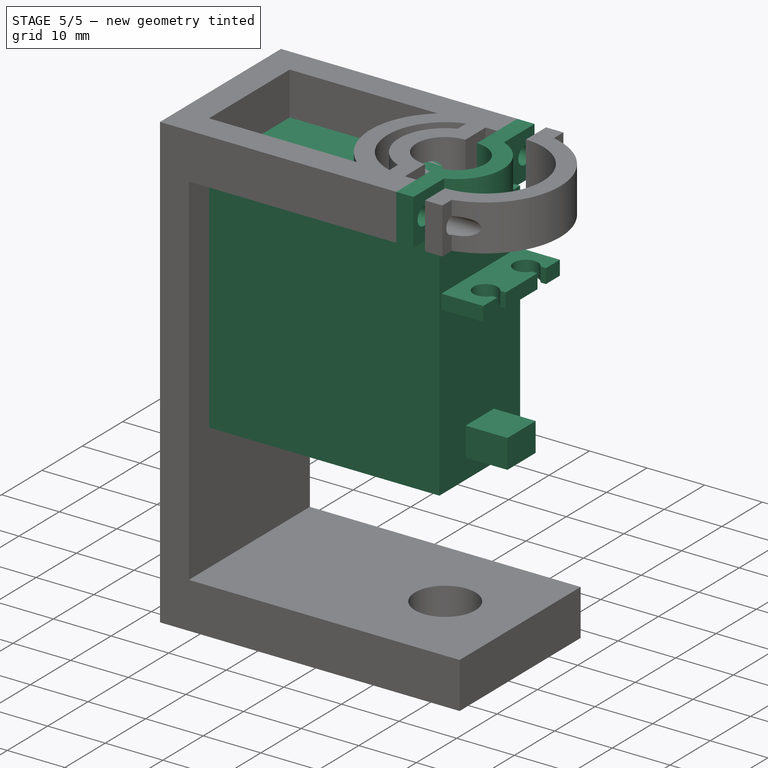
[diagram: stage 5 of 5 — iso view after this stage's code; geometry added in this stage tinted green]
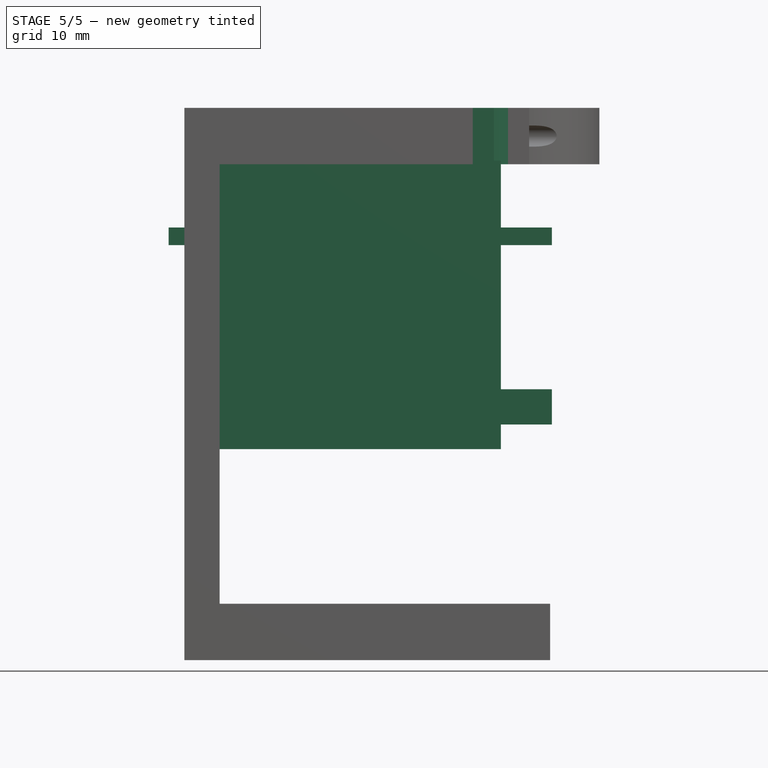
[diagram: stage 5 of 5 — front view after this stage's code; geometry added in this stage tinted green]
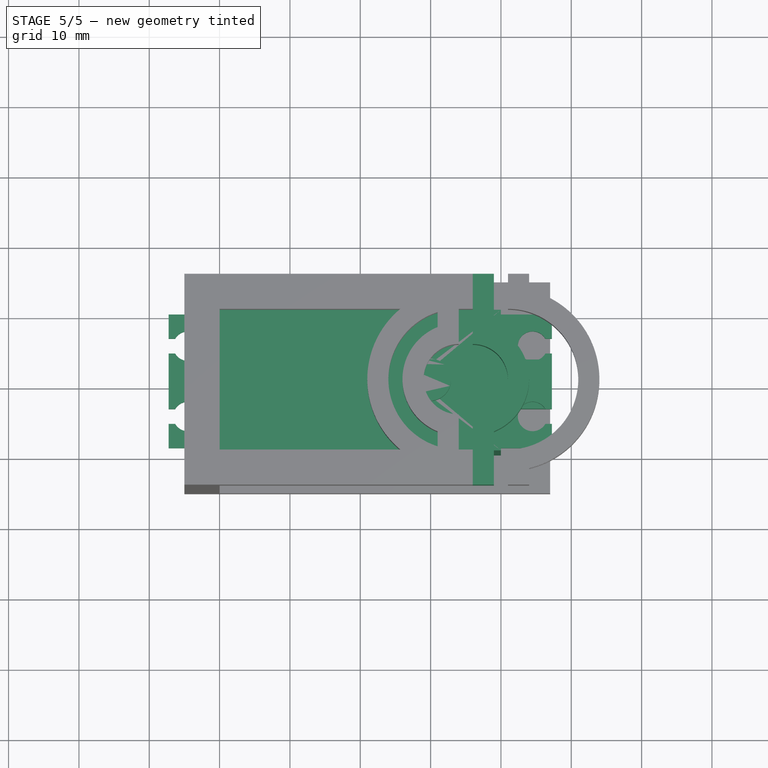
[diagram: stage 5 of 5 — top view after this stage's code; geometry added in this stage tinted green]
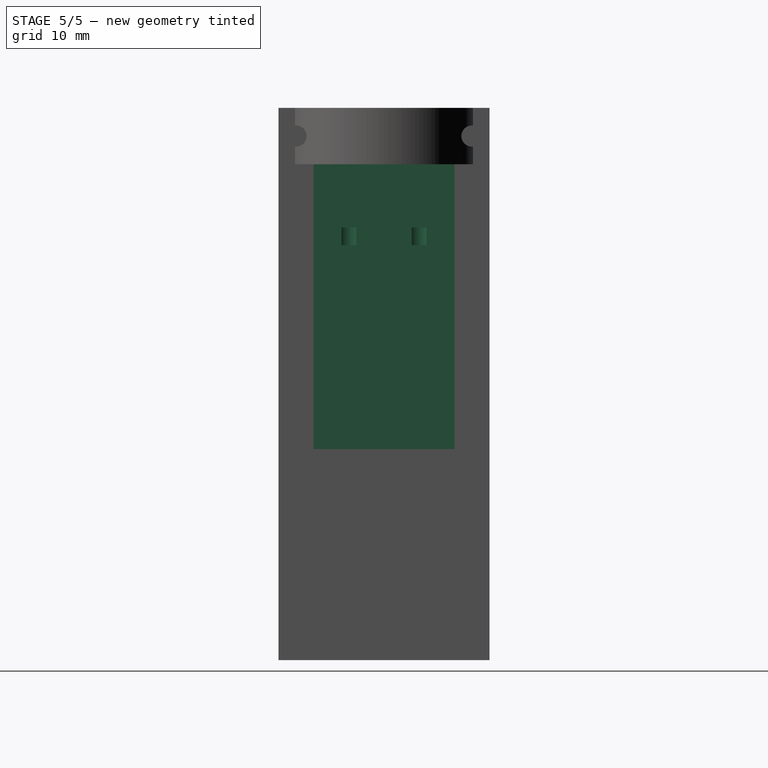
[diagram: stage 5 of 5 — right view after this stage's code; geometry added in this stage tinted green]
FEATURE [PartDesign::Pad] Pad003  label="rotor"
  AllowMultiFace = false
  Direction = (1,1,1)
  Length = 3.9
  Length2 = 100
  Type = 0
FEATURE [Sketcher::SketchObject] Sketch004
  AttachmentOffset = pos=(0,0,40.5) rot=(0,0,1;0rad)
  FullyConstrained = true
  MapMode = 5
  Placement = pos=(0,0,40.5) rot=(0,0,1;0rad)
  Support = -> [XY_Plane003]
  expr: Constraints[4] = Spreadsheet.MG996R_width / 2
  expr: Constraints[26] = Spreadsheet.spindle_dia
  expr: Constraints[29] = Spreadsheet.MG996R_width / 2 + Spreadsheet.brace_thickness_y - Spreadsheet.spindle_dia / 2
  expr: Constraints[5] = Spreadsheet.dist_to_spindle + Spreadsheet.spindle_dia / 2 + 2
  expr: Constraints[28] = Spreadsheet.spindle_dia + 6
  expr: .AttachmentOffset.Base.z = Spreadsheet.MG996R_length
  sketch-geometry (10):
    g0: LineSegment StartX=0 StartY=0 StartZ=0 EndX=0 EndY=10 EndZ=0
    g1: LineSegment StartX=0 StartY=10 StartZ=0 EndX=36 EndY=10 EndZ=0
    g2: ArcOfCircle CenterX=36 CenterY=10 CenterZ=0 NormalX=0 NormalY=0 NormalZ=1 AngleXU=0 Radius=5 StartAngle=4.71239 EndAngle=7.85398
    g3: LineSegment StartX=36 StartY=15 StartZ=0 EndX=36 EndY=25 EndZ=0
    g4: LineSegment StartX=36 StartY=25 StartZ=0 EndX=39 EndY=25 EndZ=0
    g5: LineSegment StartX=39 StartY=25 StartZ=0 EndX=39 EndY=17.4162 EndZ=0
    g6: LineSegment StartX=36 StartY=5 StartZ=0 EndX=36 EndY=-5 EndZ=0
    g7: LineSegment StartX=36 StartY=-5 StartZ=0 EndX=39 EndY=-5 EndZ=0
    g8: LineSegment StartX=39 StartY=-5 StartZ=0 EndX=39 EndY=2.5838 EndZ=0
    g9: ArcOfCircle CenterX=36 CenterY=10 CenterZ=0 NormalX=0 NormalY=0 NormalZ=1 AngleXU=0 Radius=8 StartAngle=5.09679 EndAngle=7.46958
  constraints (30):
    c: Coincident(g0,g-1)
    c: PointOnObject(g0,g-2)
    c: Coincident(g1,g0)
    c: Horizontal(g1)
    c: DistanceY(g0,g0) = 10
    c: DistanceX(g1,g1) = 36
    c: Coincident(g2,g1)
    c: Coincident(g3,g2)
    c: Vertical(g3)
    c: Coincident(g4,g3)
    c: Horizontal(g4)
    c: Coincident(g5,g4)
    c: Vertical(g5)
    c: Coincident(g6,g2)
    c: Vertical(g6)
    c: Coincident(g7,g6)
    c: Coincident(g8,g7)
    c: Vertical(g8)
    c: Coincident(g9,g2)
    c: Coincident(g9,g5)
    c: Coincident(g9,g8)
    c: Equal(g3,g6)
    c: Equal(g5,g8)
    c: Equal(g7,g4)
    c: Vertical(g2,g2)
    c: Vertical(g2,g2)
    c: Diameter(g2) = 10
    c: DistanceX(g7,g7) = 3
    c: Diameter(g9) = 16
    c: DistanceY(g3,g3) = 10
FEATURE [PartDesign::Pad] Pad007
  Direction = (1,1,1)
  Length = 8
  Length2 = 100
  Profile = -> Sketch004
  Type = 0
  expr: Length = Spreadsheet.brace_thickness_x
FEATURE [Sketcher::SketchObject] Sketch005
  AttachmentOffset = pos=(0,0,26) rot=(0,0,1;0rad)
  FullyConstrained = true
  MapMode = 5
  Placement = pos=(26,-5.8e-15,5.8e-15) rot=(0.57735,0.57735,0.57735;2.0944rad)
  Support = -> [YZ_Plane003]
  expr: Constraints[1] = Spreadsheet.MG996R_length + Spreadsheet.brace_thickness_x / 2
  expr: Constraints[2] = Spreadsheet.MG996R_width + Spreadsheet.brace_thickness_y
  expr: Constraints[5] = Spreadsheet.brace_thickness_y / 2
  expr: .AttachmentOffset.Base.z = Spreadsheet.dist_to_spindle - Spreadsheet.holding_band_thicc
  sketch-geometry (2):
    g0: Circle CenterX=22.5 CenterY=44.5 CenterZ=0 NormalX=0 NormalY=0 NormalZ=1 AngleXU=0 Radius=1.5
    g1: Circle CenterX=-2.5 CenterY=44.5 CenterZ=0 NormalX=0 NormalY=0 NormalZ=1 AngleXU=0 Radius=1.5
  constraints (6):
    c: Horizontal(g1,g0)
    c: DistanceY(g-1,g1) = 44.5
    c: DistanceX(g1,g0) = 25
    c: Diameter(g0) = 3
    c: Equal(g1,g0)
    c: DistanceX(g1,g-1) = 2.5
FEATURE [PartDesign::Pocket] Pocket
  BaseFeature = -> Pad007
  Length = 5
  Length2 = 100
  Profile = -> Sketch005
  Reversed = true
  Type = 1
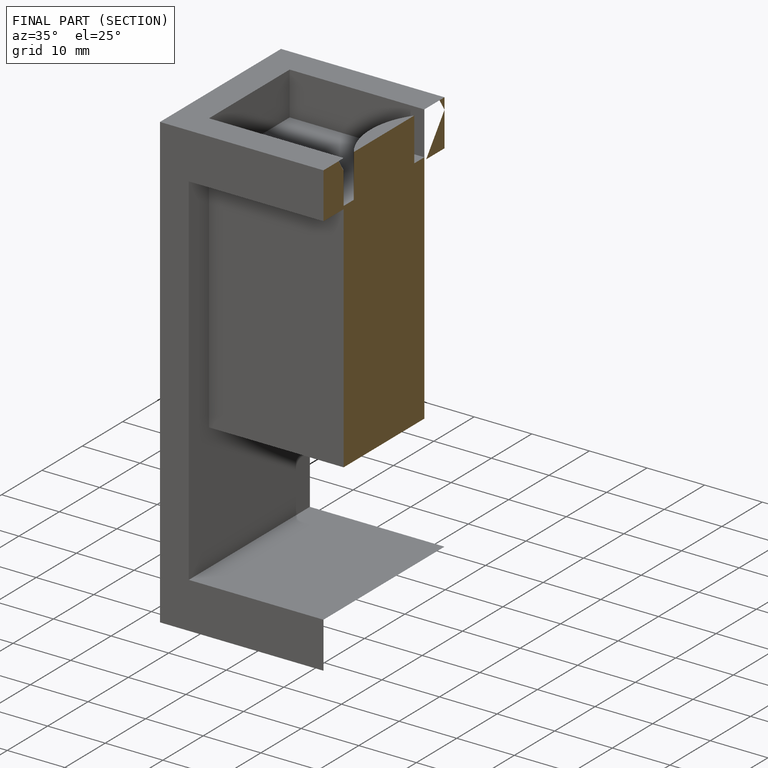
[diagram: finished part — half-section view (interior)]
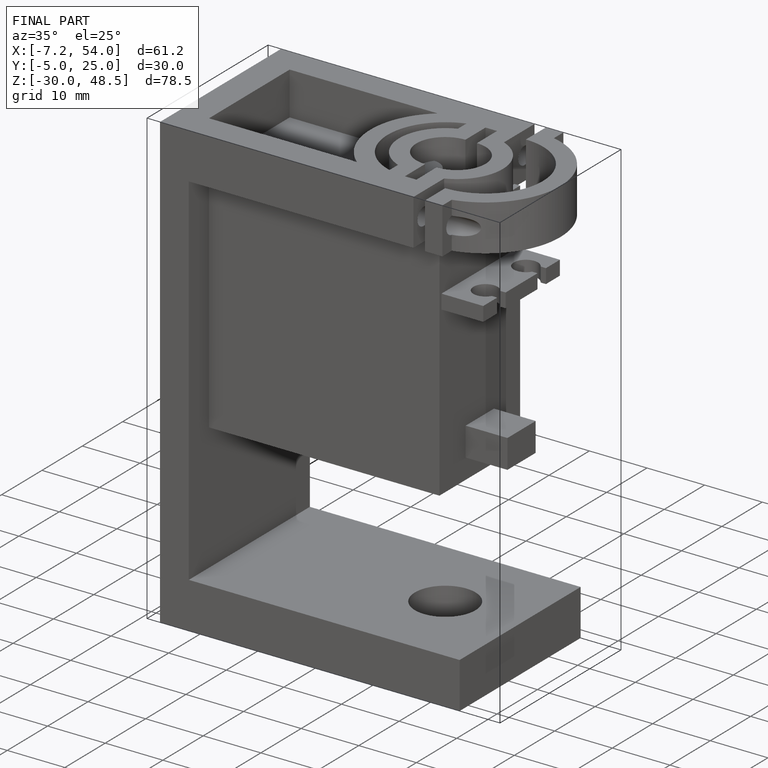
[diagram: finished part — iso view with bounding-box wireframe]
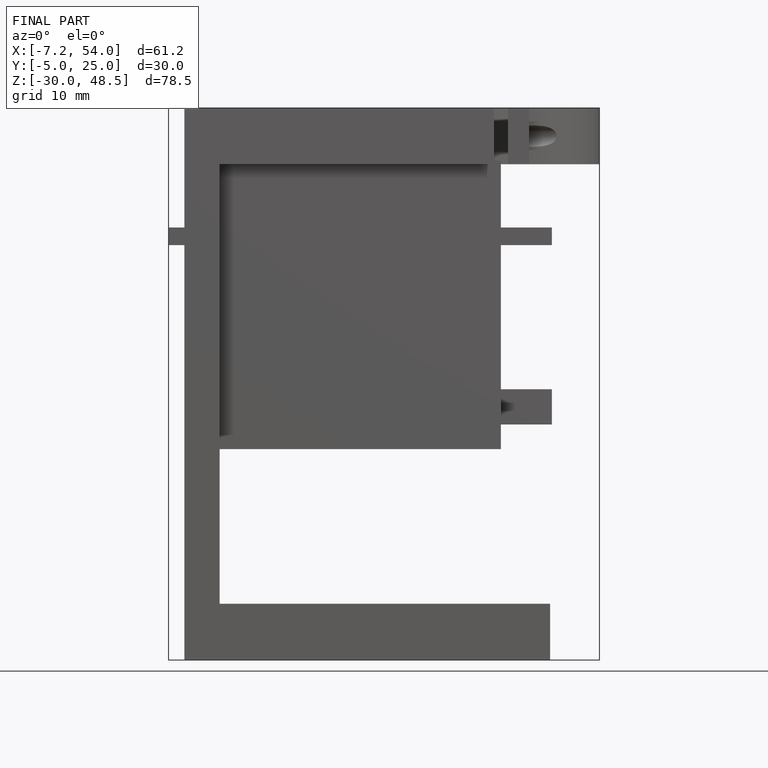
[diagram: finished part — front view with bounding-box wireframe]
